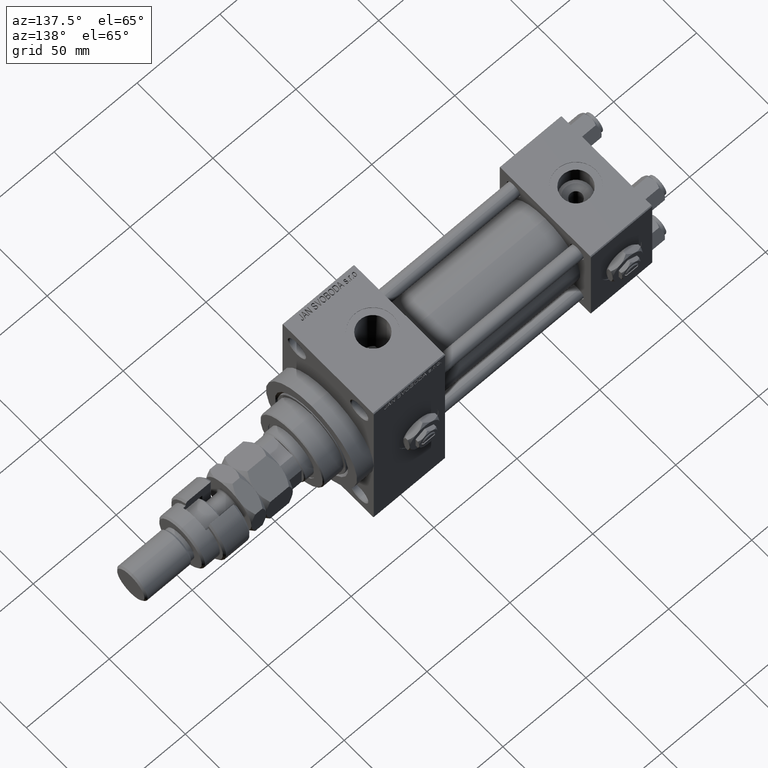
[diagram: clean part render]
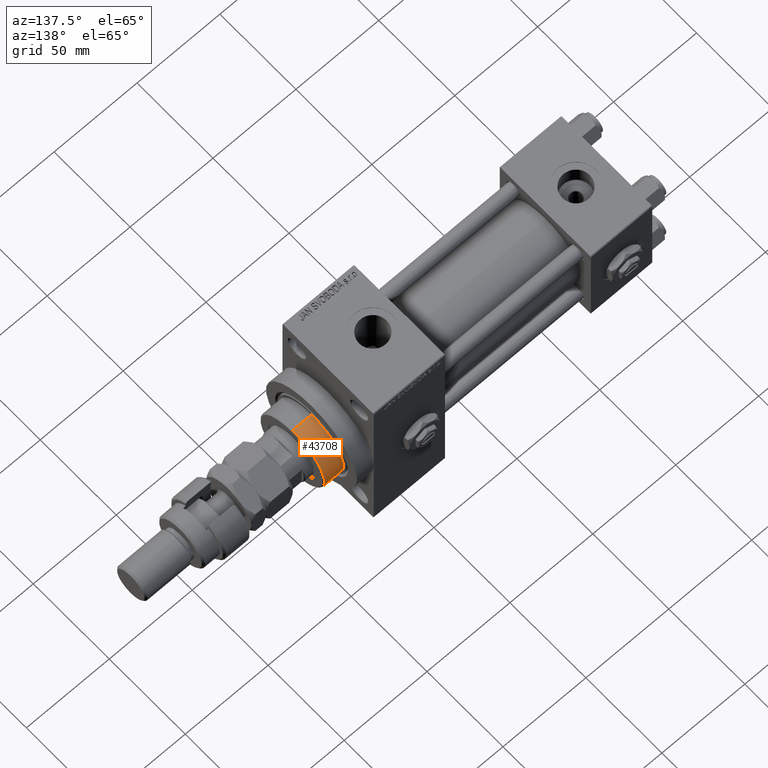
[diagram: same view with one face highlighted and labeled with its STEP entity id]
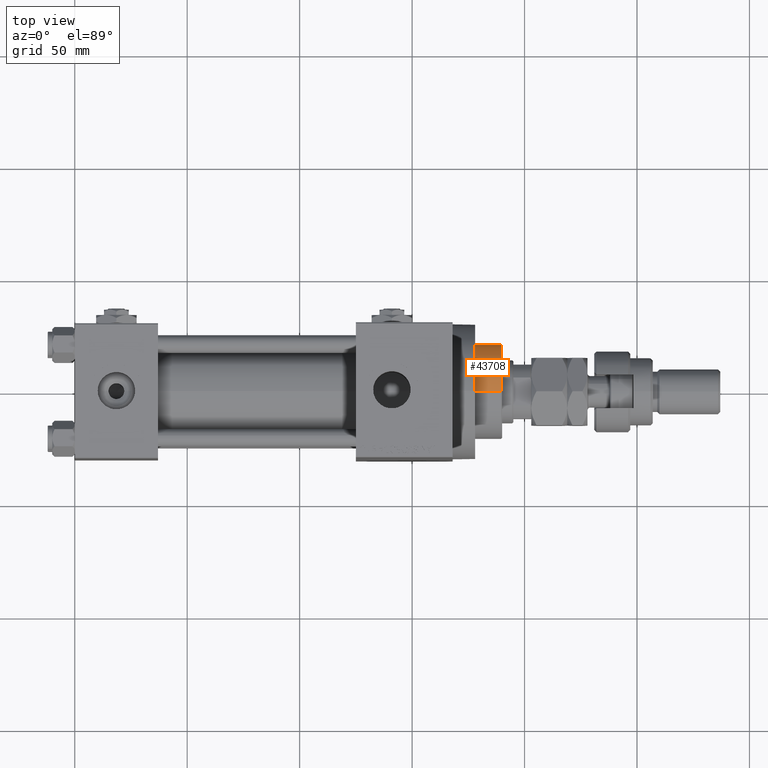
[diagram: same view with one face highlighted and labeled with its STEP entity id]
A machine part, auxiliary view. The second image highlights one B-rep face of the part: STEP entity #43708.
A second angle (top view) of the same face is appended — the face is thin or edge-on in the first view.
In plain terms, the highlighted cylindrical surface (partial cylindrical patch) has radius 21 mm, axis along (-1, 0, 0).
Its self-contained STEP definition (entity closure, byte-faithful):
#452 = DIRECTION ( 'NONE',  ( 0.000000000000000000, 0.000000000000000000, 1.000000000000000000 ) ) ;
#714 = DIRECTION ( 'NONE',  ( 1.000000000000000000, 0.000000000000000000, 0.000000000000000000 ) ) ;
#723 = EDGE_CURVE ( 'NONE', #29950, #25914, #29017, .T. ) ;
#772 = DIRECTION ( 'NONE',  ( 1.000000000000000000, 0.000000000000000000, 0.000000000000000000 ) ) ;
#3183 = AXIS2_PLACEMENT_3D ( 'NONE', #30181, #37077, #772 ) ;
#3960 = AXIS2_PLACEMENT_3D ( 'NONE', #28027, #452, #714 ) ;
#6864 = DIRECTION ( 'NONE',  ( 1.000000000000000000, 0.000000000000000000, 0.000000000000000000 ) ) ;
#7633 = CARTESIAN_POINT ( 'NONE',  ( -21.00000000000000000, 0.000000000000000000, 54.75999999999999091 ) ) ;
#7696 = EDGE_CURVE ( 'NONE', #32617, #39673, #37762, .T. ) ;
#7953 = ORIENTED_EDGE ( 'NONE', *, *, #35400, .F. ) ;
#8349 = EDGE_CURVE ( 'NONE', #25914, #20394, #49656, .T. ) ;
#8369 = CARTESIAN_POINT ( 'NONE',  ( -20.96385542168674831, -1.231570484631382412, 43.25999999999999801 ) ) ;
#8779 = ORIENTED_EDGE ( 'NONE', *, *, #723, .T. ) ;
#9216 = DIRECTION ( 'NONE',  ( -0.000000000000000000, -0.000000000000000000, -1.000000000000000000 ) ) ;
#10248 = CARTESIAN_POINT ( 'NONE',  ( 0.000000000000000000, 0.000000000000000000, 54.75999999999999091 ) ) ;
#10430 = EDGE_CURVE ( 'NONE', #20394, #25861, #26047, .T. ) ;
#10647 = ORIENTED_EDGE ( 'NONE', *, *, #8349, .T. ) ;
#10712 = VECTOR ( 'NONE', #22557, 1000.000000000000000 ) ;
#12389 = DIRECTION ( 'NONE',  ( -1.000000000000000000, 0.000000000000000000, 0.000000000000000000 ) ) ;
#14767 = CARTESIAN_POINT ( 'NONE',  ( -21.00000000000000000, 0.000000000000000000, 43.25999999999999801 ) ) ;
#14937 = AXIS2_PLACEMENT_3D ( 'NONE', #10248, #31167, #34611 ) ;
#15858 = AXIS2_PLACEMENT_3D ( 'NONE', #16904, #9216, #12389 ) ;
#16904 = CARTESIAN_POINT ( 'NONE',  ( 0.000000000000000000, 0.000000000000000000, 55.26000000000000512 ) ) ;
#19727 = CARTESIAN_POINT ( 'NONE',  ( 20.96385542168674831, -1.231570484631382412, 43.25999999999999801 ) ) ;
#20394 = VERTEX_POINT ( 'NONE', #19727 ) ;
#20968 = ORIENTED_EDGE ( 'NONE', *, *, #7696, .T. ) ;
#22538 = DIRECTION ( 'NONE',  ( -0.000000000000000000, -0.000000000000000000, -1.000000000000000000 ) ) ;
#22557 = DIRECTION ( 'NONE',  ( -0.000000000000000000, -0.000000000000000000, -1.000000000000000000 ) ) ;
#23270 = DIRECTION ( 'NONE',  ( 0.000000000000000000, 0.000000000000000000, 1.000000000000000000 ) ) ;
#25861 = VERTEX_POINT ( 'NONE', #26932 ) ;
#25914 = VERTEX_POINT ( 'NONE', #8369 ) ;
#26047 = CIRCLE ( 'NONE', #3183, 21.00000000000000000 ) ;
#26932 = CARTESIAN_POINT ( 'NONE',  ( 21.00000000000000000, 2.571758278209441661E-15, 43.25999999999999801 ) ) ;
#27406 = CARTESIAN_POINT ( 'NONE',  ( 21.00000000000000000, 2.571758278209441661E-15, 54.75999999999999091 ) ) ;
#28027 = CARTESIAN_POINT ( 'NONE',  ( 0.000000000000000000, 0.000000000000000000, 43.25999999999999801 ) ) ;
#29017 = CIRCLE ( 'NONE', #33361, 21.00000000000000000 ) ;
#29057 = CYLINDRICAL_SURFACE ( 'NONE', #15858, 21.00000000000000000 ) ;
#29950 = VERTEX_POINT ( 'NONE', #14767 ) ;
#30181 = CARTESIAN_POINT ( 'NONE',  ( 0.000000000000000000, 0.000000000000000000, 43.25999999999999801 ) ) ;
#30747 = CARTESIAN_POINT ( 'NONE',  ( 21.00000000000000000, 2.571758278209441661E-15, 55.26000000000000512 ) ) ;
#31167 = DIRECTION ( 'NONE',  ( 0.000000000000000000, 0.000000000000000000, -1.000000000000000000 ) ) ;
#31218 = ORIENTED_EDGE ( 'NONE', *, *, #41453, .T. ) ;
#32617 = VERTEX_POINT ( 'NONE', #27406 ) ;
#33361 = AXIS2_PLACEMENT_3D ( 'NONE', #43407, #23270, #6864 ) ;
#34457 = LINE ( 'NONE', #30747, #35968 ) ;
#34478 = CARTESIAN_POINT ( 'NONE',  ( -21.00000000000000000, 0.000000000000000000, 55.26000000000000512 ) ) ;
#34611 = DIRECTION ( 'NONE',  ( 1.000000000000000000, 0.000000000000000000, 0.000000000000000000 ) ) ;
#35400 = EDGE_CURVE ( 'NONE', #32617, #25861, #34457, .T. ) ;
#35968 = VECTOR ( 'NONE', #22538, 1000.000000000000000 ) ;
#36506 = FACE_OUTER_BOUND ( 'NONE', #51815, .T. ) ;
#37077 = DIRECTION ( 'NONE',  ( 0.000000000000000000, 0.000000000000000000, 1.000000000000000000 ) ) ;
#37762 = CIRCLE ( 'NONE', #14937, 21.00000000000000000 ) ;
#39673 = VERTEX_POINT ( 'NONE', #7633 ) ;
#41453 = EDGE_CURVE ( 'NONE', #39673, #29950, #46422, .T. ) ;
#43407 = CARTESIAN_POINT ( 'NONE',  ( 0.000000000000000000, 0.000000000000000000, 43.25999999999999801 ) ) ;
#43708 = ADVANCED_FACE ( 'NONE', ( #36506 ), #29057, .T. ) ;
#46422 = LINE ( 'NONE', #34478, #10712 ) ;
#49656 = CIRCLE ( 'NONE', #3960, 21.00000000000000000 ) ;
#50931 = ORIENTED_EDGE ( 'NONE', *, *, #10430, .T. ) ;
#51815 = EDGE_LOOP ( 'NONE', ( #7953, #20968, #31218, #8779, #10647, #50931 ) ) ;